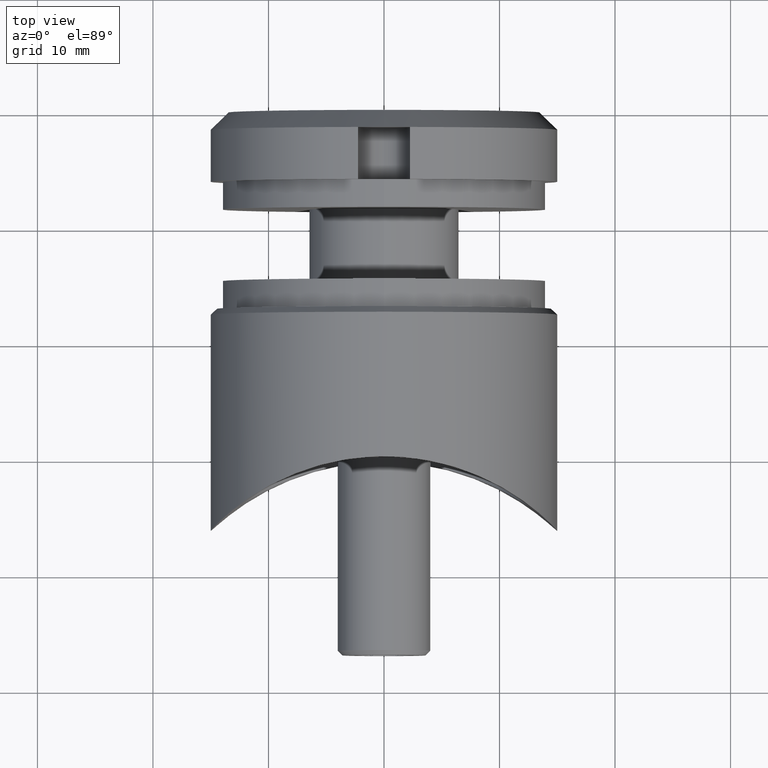
[diagram: clean part render]
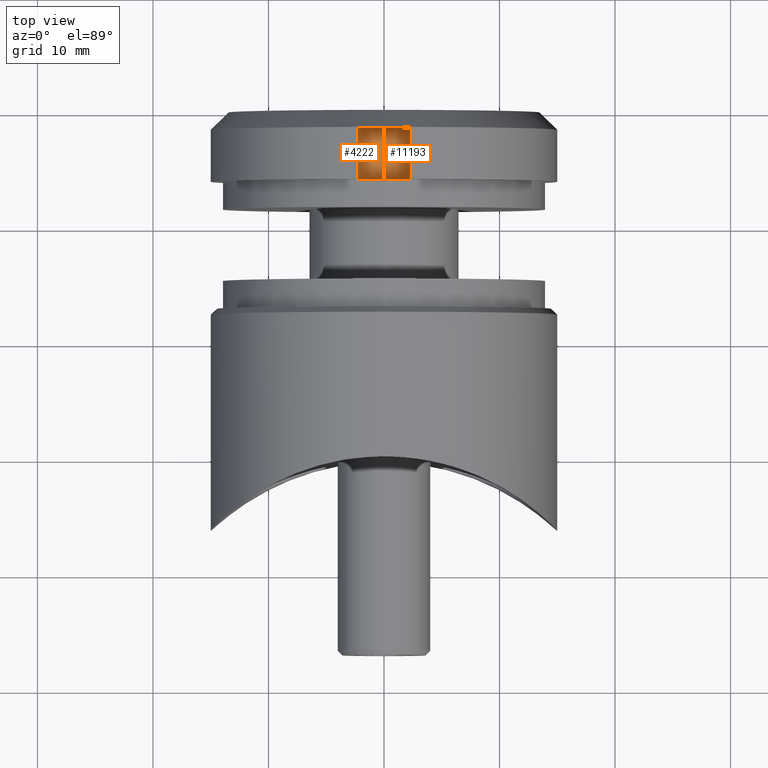
[diagram: same view with one multi-face feature highlighted, each face labeled with its STEP entity id]
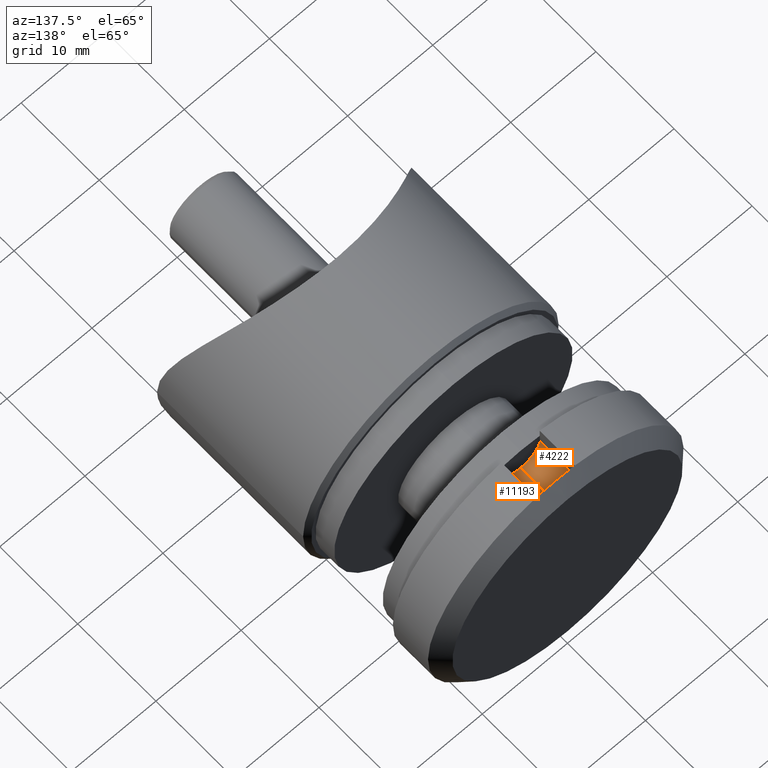
[diagram: same view with one multi-face feature highlighted, each face labeled with its STEP entity id]
A machine part, top view. The highlighted faces form ONE feature: a constant-radius fillet chain: 2 tangent blend faces with common blend radius 2.25 mm. The faces share edges in the B-rep.
A second angle (auxiliary view) of the same feature is appended — it is thin or edge-on in the first view.
Their STEP definitions:
[1] entity #4222 (Cylinder):
#379 = ORIENTED_EDGE ( 'NONE', *, *, #920, .F. ) ;
#398 = DIRECTION ( 'NONE',  ( 0.000000000000000000, 0.000000000000000000, 1.000000000000000000 ) ) ;
#425 = VERTEX_POINT ( 'NONE', #3680 ) ;
#437 = VECTOR ( 'NONE', #6705, 1000.000000000000000 ) ;
#920 = EDGE_CURVE ( 'NONE', #1885, #10802, #14374, .T. ) ;
#1599 = DIRECTION ( 'NONE',  ( 0.000000000000000000, 0.000000000000000000, 1.000000000000000000 ) ) ;
#1885 = VERTEX_POINT ( 'NONE', #6867 ) ;
#2541 = AXIS2_PLACEMENT_3D ( 'NONE', #6517, #14112, #9668 ) ;
#3443 = CARTESIAN_POINT ( 'NONE',  ( 0.000000000000000000, 5.000000000000000888, 10.49999999999999822 ) ) ;
#3680 = CARTESIAN_POINT ( 'NONE',  ( -2.250000000000000444, 5.000000000000000888, 12.75000000000000000 ) ) ;
#3775 = DIRECTION ( 'NONE',  ( 0.000000000000000000, 1.000000000000000000, 0.000000000000000000 ) ) ;
#3830 = CARTESIAN_POINT ( 'NONE',  ( -4.336808689942017736E-16, 9.500000000000001776, 12.75000000000000000 ) ) ;
#4039 = DIRECTION ( 'NONE',  ( 0.000000000000000000, -1.000000000000000000, 0.000000000000000000 ) ) ;
#4222 = ADVANCED_FACE ( 'NONE', ( #4762 ), #13269, .F. ) ;
#4653 = CARTESIAN_POINT ( 'NONE',  ( -4.336808689942017736E-16, 9.500000000000001776, 10.49999999999999822 ) ) ;
#4762 = FACE_OUTER_BOUND ( 'NONE', #7399, .T. ) ;
#5152 = CARTESIAN_POINT ( 'NONE',  ( -4.336808689942017736E-16, 5.000000000000000888, 10.49999999999999822 ) ) ;
#5457 = VECTOR ( 'NONE', #4039, 1000.000000000000000 ) ;
#5495 = ORIENTED_EDGE ( 'NONE', *, *, #5525, .F. ) ;
#5525 = EDGE_CURVE ( 'NONE', #10802, #6997, #13605, .T. ) ;
#6375 = LINE ( 'NONE', #8135, #437 ) ;
#6517 = CARTESIAN_POINT ( 'NONE',  ( -4.336808689942017736E-16, 5.000000000000000888, 12.75000000000000000 ) ) ;
#6705 = DIRECTION ( 'NONE',  ( -0.000000000000000000, 1.000000000000000000, -0.000000000000000000 ) ) ;
#6867 = CARTESIAN_POINT ( 'NONE',  ( -2.250000000000000444, 9.500000000000001776, 12.75000000000000000 ) ) ;
#6997 = VERTEX_POINT ( 'NONE', #3443 ) ;
#7399 = EDGE_LOOP ( 'NONE', ( #5495, #379, #7867, #12024 ) ) ;
#7867 = ORIENTED_EDGE ( 'NONE', *, *, #8317, .F. ) ;
#8135 = CARTESIAN_POINT ( 'NONE',  ( -2.250000000000000444, 9.500000000000001776, 12.75000000000000000 ) ) ;
#8317 = EDGE_CURVE ( 'NONE', #425, #1885, #6375, .T. ) ;
#9472 = AXIS2_PLACEMENT_3D ( 'NONE', #10644, #10490, #1599 ) ;
#9668 = DIRECTION ( 'NONE',  ( 0.000000000000000000, 0.000000000000000000, -1.000000000000000000 ) ) ;
#10490 = DIRECTION ( 'NONE',  ( 0.000000000000000000, -1.000000000000000000, 0.000000000000000000 ) ) ;
#10644 = CARTESIAN_POINT ( 'NONE',  ( -4.336808689942017736E-16, 9.500000000000001776, 12.75000000000000000 ) ) ;
#10670 = CIRCLE ( 'NONE', #2541, 2.250000000000000444 ) ;
#10802 = VERTEX_POINT ( 'NONE', #4653 ) ;
#11411 = EDGE_CURVE ( 'NONE', #6997, #425, #10670, .T. ) ;
#12024 = ORIENTED_EDGE ( 'NONE', *, *, #11411, .F. ) ;
#12935 = AXIS2_PLACEMENT_3D ( 'NONE', #3830, #3775, #398 ) ;
#13269 = CYLINDRICAL_SURFACE ( 'NONE', #12935, 2.250000000000000444 ) ;
#13605 = LINE ( 'NONE', #5152, #5457 ) ;
#14112 = DIRECTION ( 'NONE',  ( 0.000000000000000000, 1.000000000000000000, 0.000000000000000000 ) ) ;
#14374 = CIRCLE ( 'NONE', #9472, 2.250000000000000444 ) ;
[2] entity #11193 (Cylinder):
#55 = AXIS2_PLACEMENT_3D ( 'NONE', #10448, #2632, #13611 ) ;
#1121 = ORIENTED_EDGE ( 'NONE', *, *, #7368, .F. ) ;
#2262 = DIRECTION ( 'NONE',  ( 0.000000000000000000, 0.000000000000000000, -1.000000000000000000 ) ) ;
#2306 = VERTEX_POINT ( 'NONE', #11450 ) ;
#2632 = DIRECTION ( 'NONE',  ( 0.000000000000000000, -1.000000000000000000, 0.000000000000000000 ) ) ;
#3246 = EDGE_CURVE ( 'NONE', #10802, #2306, #3509, .T. ) ;
#3443 = CARTESIAN_POINT ( 'NONE',  ( 0.000000000000000000, 5.000000000000000888, 10.49999999999999822 ) ) ;
#3509 = CIRCLE ( 'NONE', #55, 2.250000000000000444 ) ;
#3984 = VERTEX_POINT ( 'NONE', #7395 ) ;
#4039 = DIRECTION ( 'NONE',  ( 0.000000000000000000, -1.000000000000000000, 0.000000000000000000 ) ) ;
#4457 = CARTESIAN_POINT ( 'NONE',  ( 0.000000000000000000, 5.000000000000000888, 12.75000000000000000 ) ) ;
#4517 = VECTOR ( 'NONE', #13194, 1000.000000000000000 ) ;
#4653 = CARTESIAN_POINT ( 'NONE',  ( -4.336808689942017736E-16, 9.500000000000001776, 10.49999999999999822 ) ) ;
#5152 = CARTESIAN_POINT ( 'NONE',  ( -4.336808689942017736E-16, 5.000000000000000888, 10.49999999999999822 ) ) ;
#5457 = VECTOR ( 'NONE', #4039, 1000.000000000000000 ) ;
#5525 = EDGE_CURVE ( 'NONE', #10802, #6997, #13605, .T. ) ;
#5693 = DIRECTION ( 'NONE',  ( 0.000000000000000000, 0.000000000000000000, 1.000000000000000000 ) ) ;
#6349 = CARTESIAN_POINT ( 'NONE',  ( 2.250000000000000000, 5.000000000000000888, 12.75000000000000000 ) ) ;
#6997 = VERTEX_POINT ( 'NONE', #3443 ) ;
#7016 = EDGE_LOOP ( 'NONE', ( #11064, #12027, #13622, #1121 ) ) ;
#7167 = CIRCLE ( 'NONE', #9336, 2.250000000000000444 ) ;
#7368 = EDGE_CURVE ( 'NONE', #2306, #3984, #7477, .T. ) ;
#7395 = CARTESIAN_POINT ( 'NONE',  ( 2.250000000000000000, 5.000000000000000888, 12.75000000000000000 ) ) ;
#7477 = LINE ( 'NONE', #6349, #4517 ) ;
#8016 = DIRECTION ( 'NONE',  ( 0.000000000000000000, 1.000000000000000000, 0.000000000000000000 ) ) ;
#9336 = AXIS2_PLACEMENT_3D ( 'NONE', #4457, #13518, #2262 ) ;
#10448 = CARTESIAN_POINT ( 'NONE',  ( 0.000000000000000000, 9.500000000000001776, 12.75000000000000000 ) ) ;
#10802 = VERTEX_POINT ( 'NONE', #4653 ) ;
#11064 = ORIENTED_EDGE ( 'NONE', *, *, #3246, .F. ) ;
#11193 = ADVANCED_FACE ( 'NONE', ( #13551 ), #11361, .F. ) ;
#11361 = CYLINDRICAL_SURFACE ( 'NONE', #13517, 2.250000000000000444 ) ;
#11450 = CARTESIAN_POINT ( 'NONE',  ( 2.250000000000000000, 9.500000000000001776, 12.75000000000000000 ) ) ;
#12027 = ORIENTED_EDGE ( 'NONE', *, *, #5525, .T. ) ;
#12406 = CARTESIAN_POINT ( 'NONE',  ( 0.000000000000000000, 9.500000000000001776, 12.75000000000000000 ) ) ;
#13194 = DIRECTION ( 'NONE',  ( 0.000000000000000000, -1.000000000000000000, 0.000000000000000000 ) ) ;
#13453 = EDGE_CURVE ( 'NONE', #3984, #6997, #7167, .T. ) ;
#13517 = AXIS2_PLACEMENT_3D ( 'NONE', #12406, #8016, #5693 ) ;
#13518 = DIRECTION ( 'NONE',  ( 0.000000000000000000, 1.000000000000000000, 0.000000000000000000 ) ) ;
#13551 = FACE_OUTER_BOUND ( 'NONE', #7016, .T. ) ;
#13605 = LINE ( 'NONE', #5152, #5457 ) ;
#13611 = DIRECTION ( 'NONE',  ( 0.000000000000000000, 0.000000000000000000, 1.000000000000000000 ) ) ;
#13622 = ORIENTED_EDGE ( 'NONE', *, *, #13453, .F. ) ;